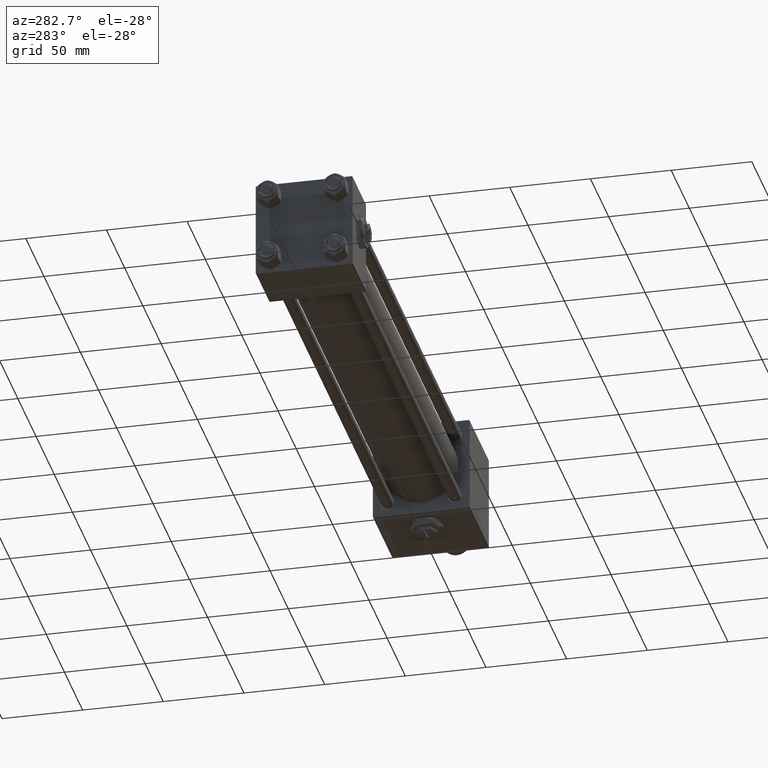
[diagram: clean part render]
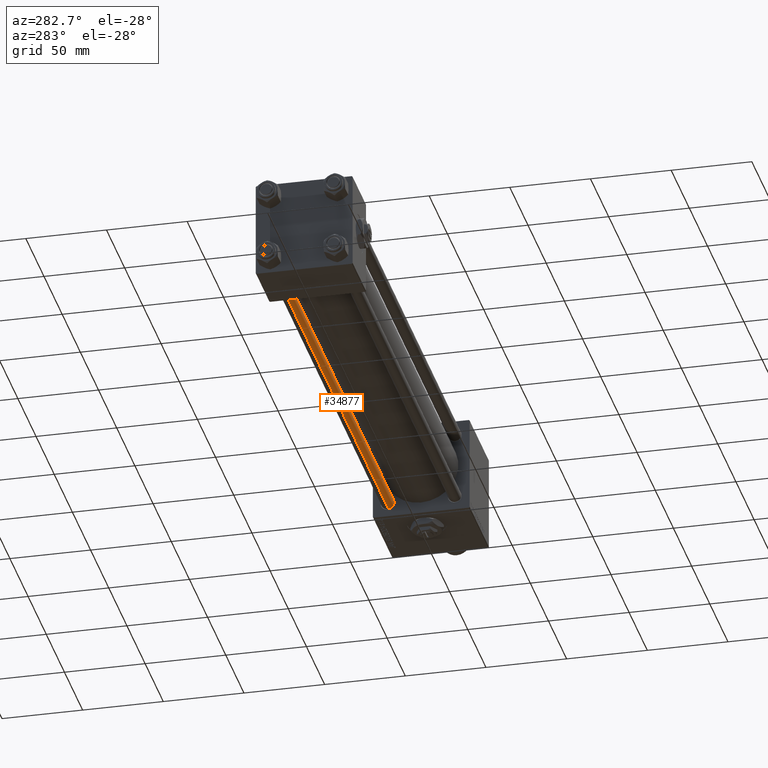
[diagram: same view with one face highlighted and labeled with its STEP entity id]
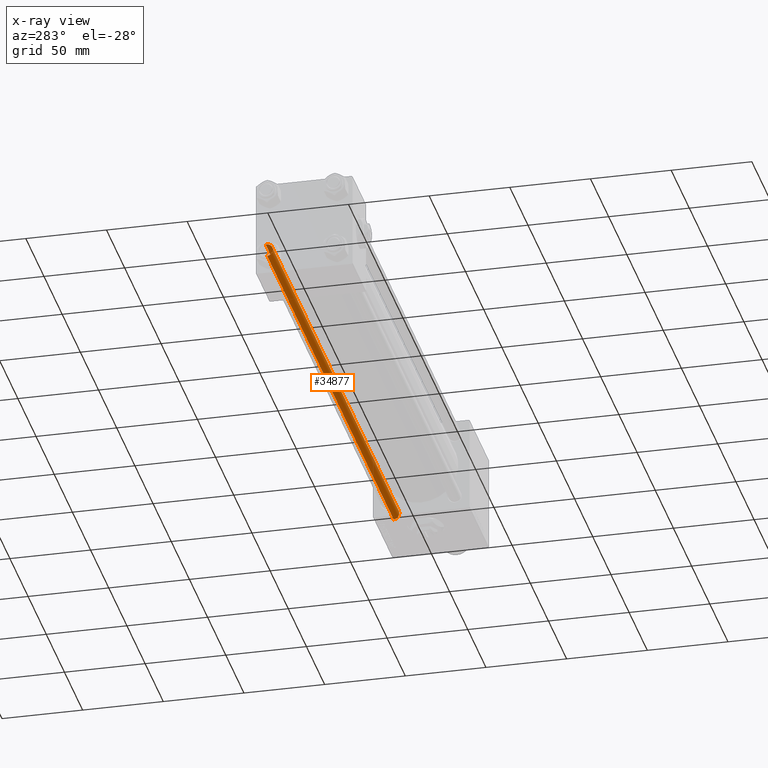
[diagram: x-ray of the same camera — body ghosted, the highlighted face saturated]
A machine part, auxiliary view. The second image highlights one B-rep face of the part: STEP entity #34877.
The next image is the same camera in x-ray: the body ghosted, the highlighted face saturated — about 0% of this face is hidden behind the body in this view.
In plain terms, the highlighted cylindrical surface (edge-blend (fillet) strip) has radius 4 mm, axis along (1, -0, 0).
Its self-contained STEP definition (entity closure, byte-faithful):
#1023 = LINE ( 'NONE', #33982, #2002 ) ;
#2002 = VECTOR ( 'NONE', #17246, 1000.000000000000000 ) ;
#3450 = CARTESIAN_POINT ( 'NONE',  ( 4.000000000000000000, 4.898587196589412829E-16, 349.0000000000000000 ) ) ;
#4064 = ORIENTED_EDGE ( 'NONE', *, *, #4888, .T. ) ;
#4888 = EDGE_CURVE ( 'NONE', #50203, #38084, #19368, .T. ) ;
#12481 = FACE_OUTER_BOUND ( 'NONE', #13942, .T. ) ;
#12563 = AXIS2_PLACEMENT_3D ( 'NONE', #23361, #32102, #39570 ) ;
#12677 = DIRECTION ( 'NONE',  ( 1.000000000000000000, 0.000000000000000000, 0.000000000000000000 ) ) ;
#13037 = VERTEX_POINT ( 'NONE', #33884 ) ;
#13942 = EDGE_LOOP ( 'NONE', ( #18369, #27765, #29632, #4064 ) ) ;
#16827 = CARTESIAN_POINT ( 'NONE',  ( -4.000000000000000000, 0.000000000000000000, 0.4999999999999449329 ) ) ;
#17246 = DIRECTION ( 'NONE',  ( -0.000000000000000000, -0.000000000000000000, -1.000000000000000000 ) ) ;
#17767 = DIRECTION ( 'NONE',  ( -1.000000000000000000, 0.000000000000000000, 0.000000000000000000 ) ) ;
#18369 = ORIENTED_EDGE ( 'NONE', *, *, #52229, .F. ) ;
#19368 = CIRCLE ( 'NONE', #12563, 4.000000000000000000 ) ;
#19472 = EDGE_CURVE ( 'NONE', #22842, #50203, #1023, .T. ) ;
#20508 = AXIS2_PLACEMENT_3D ( 'NONE', #33145, #49135, #12677 ) ;
#20736 = CYLINDRICAL_SURFACE ( 'NONE', #25541, 4.000000000000000000 ) ;
#21249 = CARTESIAN_POINT ( 'NONE',  ( -4.000000000000000000, 0.000000000000000000, 348.4999999999999432 ) ) ;
#22842 = VERTEX_POINT ( 'NONE', #21249 ) ;
#23361 = CARTESIAN_POINT ( 'NONE',  ( 0.000000000000000000, 0.000000000000000000, 0.4999999999999449329 ) ) ;
#24757 = CIRCLE ( 'NONE', #20508, 4.000000000000000000 ) ;
#25541 = AXIS2_PLACEMENT_3D ( 'NONE', #28681, #36956, #17767 ) ;
#27765 = ORIENTED_EDGE ( 'NONE', *, *, #35062, .T. ) ;
#28422 = DIRECTION ( 'NONE',  ( -0.000000000000000000, -0.000000000000000000, -1.000000000000000000 ) ) ;
#28681 = CARTESIAN_POINT ( 'NONE',  ( 0.000000000000000000, 0.000000000000000000, 349.0000000000000000 ) ) ;
#29632 = ORIENTED_EDGE ( 'NONE', *, *, #19472, .T. ) ;
#32102 = DIRECTION ( 'NONE',  ( -0.000000000000000000, -0.000000000000000000, 1.000000000000000000 ) ) ;
#33145 = CARTESIAN_POINT ( 'NONE',  ( 0.000000000000000000, 0.000000000000000000, 348.4999999999999432 ) ) ;
#33884 = CARTESIAN_POINT ( 'NONE',  ( 4.000000000000000000, 4.898587196589412829E-16, 348.4999999999999432 ) ) ;
#33982 = CARTESIAN_POINT ( 'NONE',  ( -4.000000000000000000, 0.000000000000000000, 349.0000000000000000 ) ) ;
#34877 = ADVANCED_FACE ( 'NONE', ( #12481 ), #20736, .T. ) ;
#35062 = EDGE_CURVE ( 'NONE', #13037, #22842, #24757, .T. ) ;
#36956 = DIRECTION ( 'NONE',  ( -0.000000000000000000, -0.000000000000000000, -1.000000000000000000 ) ) ;
#38084 = VERTEX_POINT ( 'NONE', #45218 ) ;
#39570 = DIRECTION ( 'NONE',  ( 1.000000000000000000, 0.000000000000000000, 0.000000000000000000 ) ) ;
#45218 = CARTESIAN_POINT ( 'NONE',  ( 4.000000000000000000, 4.898587196589412829E-16, 0.4999999999999449329 ) ) ;
#47824 = VECTOR ( 'NONE', #28422, 1000.000000000000000 ) ;
#49135 = DIRECTION ( 'NONE',  ( 0.000000000000000000, 0.000000000000000000, -1.000000000000000000 ) ) ;
#50203 = VERTEX_POINT ( 'NONE', #16827 ) ;
#52138 = LINE ( 'NONE', #3450, #47824 ) ;
#52229 = EDGE_CURVE ( 'NONE', #13037, #38084, #52138, .T. ) ;